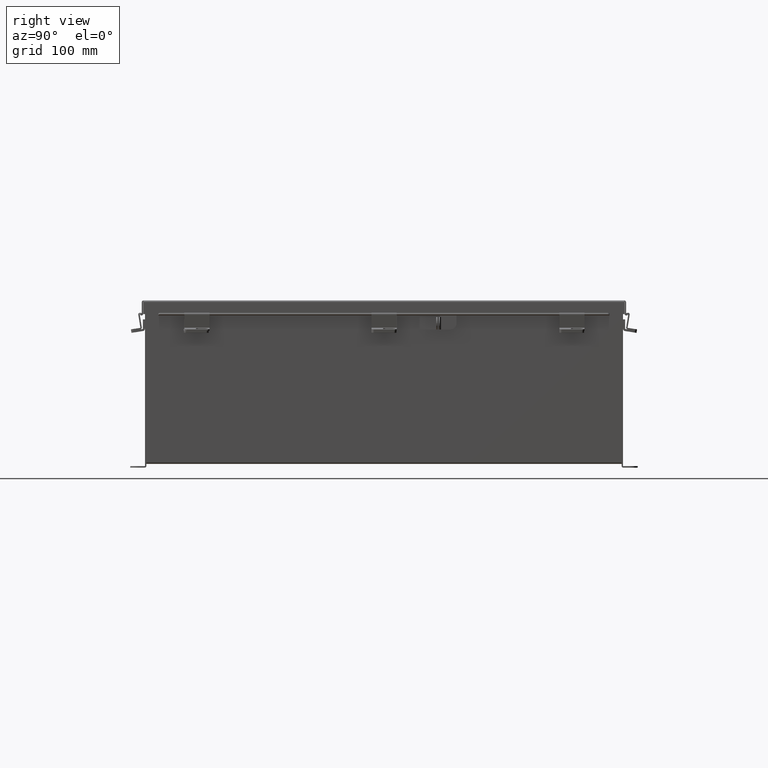
[diagram: clean part render]
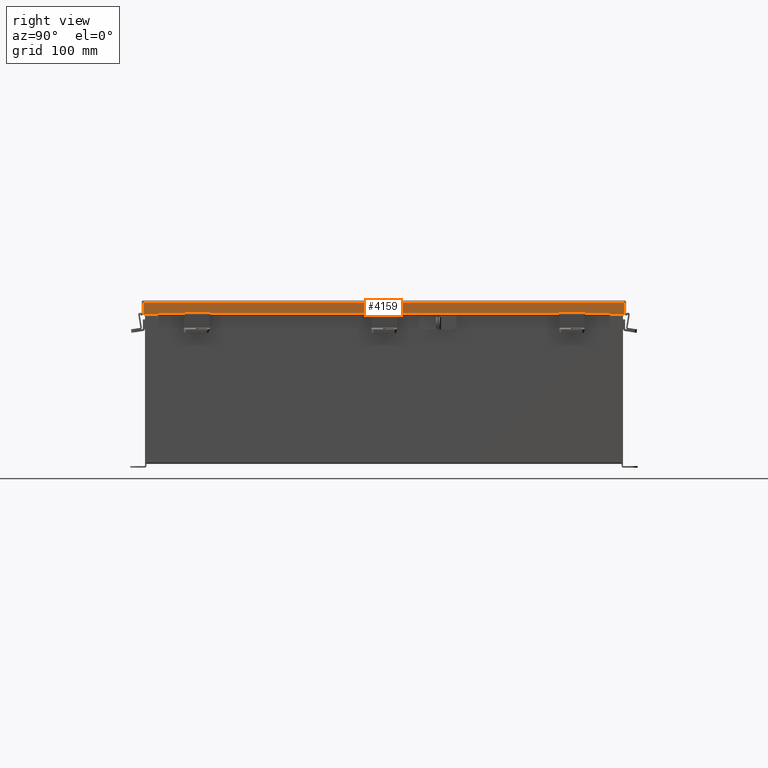
[diagram: same view with one face highlighted and labeled with its STEP entity id]
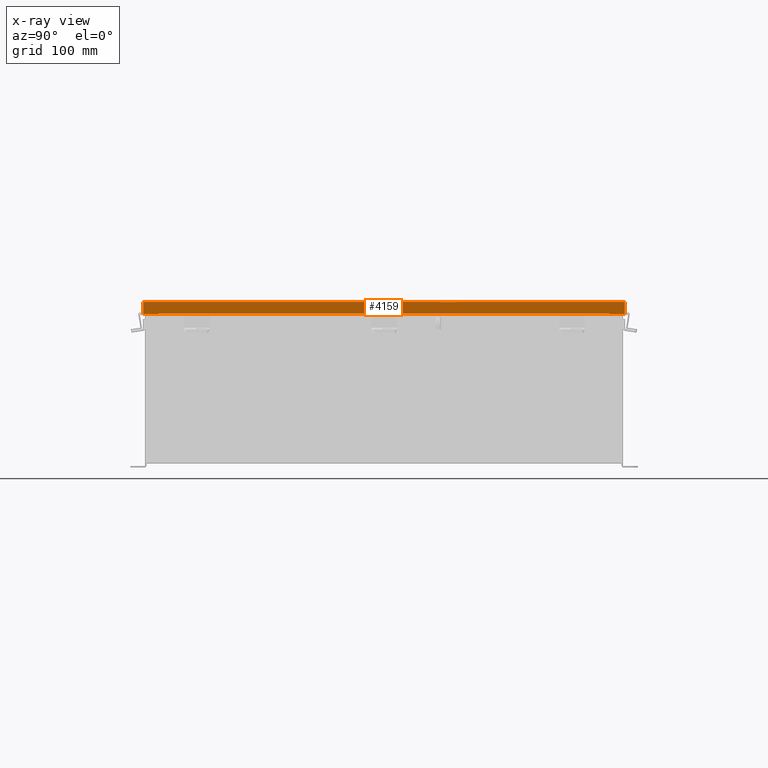
[diagram: x-ray of the same camera — body ghosted, the highlighted face saturated]
A machine part, right view. The second image highlights one B-rep face of the part: STEP entity #4159.
The next image is the same camera in x-ray: the body ghosted, the highlighted face saturated — about 0% of this face is hidden behind the body in this view.
In plain terms, the highlighted planar face has unit normal (-1, 0, -0).
Its self-contained STEP definition (entity closure, byte-faithful):
#238 = CARTESIAN_POINT ( 'NONE',  ( -12.15625000000003400, -11.32447893218813600, 0.6123000000000005100 ) ) ;
#433 = VECTOR ( 'NONE', #2533, 39.37007874015748100 ) ;
#536 = EDGE_CURVE ( 'NONE', #10867, #24933, #10958, .T. ) ;
#720 = VECTOR ( 'NONE', #22488, 39.37007874015748100 ) ;
#765 = LINE ( 'NONE', #12015, #14919 ) ;
#1323 = CARTESIAN_POINT ( 'NONE',  ( -12.15625000000003400, 11.32447893218813200, 0.6123000000000015100 ) ) ;
#1943 = ORIENTED_EDGE ( 'NONE', *, *, #3652, .F. ) ;
#2207 = LINE ( 'NONE', #18048, #16940 ) ;
#2533 = DIRECTION ( 'NONE',  ( 3.166671605124525800E-030, 1.000000000000000000, 1.853823127269377700E-029 ) ) ;
#2723 = ORIENTED_EDGE ( 'NONE', *, *, #6420, .F. ) ;
#2733 = DIRECTION ( 'NONE',  ( -3.166671605124527300E-030, -1.000000000000000000, -1.853823127269378000E-029 ) ) ;
#2819 = LINE ( 'NONE', #13302, #17560 ) ;
#3129 = ORIENTED_EDGE ( 'NONE', *, *, #4023, .F. ) ;
#3297 = EDGE_CURVE ( 'NONE', #10867, #24634, #10157, .T. ) ;
#3652 = EDGE_CURVE ( 'NONE', #9487, #9513, #7433, .T. ) ;
#4023 = EDGE_CURVE ( 'NONE', #24933, #11311, #765, .T. ) ;
#4050 = CARTESIAN_POINT ( 'NONE',  ( -12.15625000000003400, 11.32447893218813400, 0.5967115427318793200 ) ) ;
#4159 = ADVANCED_FACE ( 'NONE', ( #23358 ), #6515, .F. ) ;
#4670 = DIRECTION ( 'NONE',  ( 3.569293475308537100E-015, -1.846427556282924000E-029, -1.000000000000000000 ) ) ;
#4767 = EDGE_CURVE ( 'NONE', #24634, #17372, #16385, .T. ) ;
#4959 = EDGE_CURVE ( 'NONE', #19998, #17372, #21816, .T. ) ;
#4999 = CARTESIAN_POINT ( 'NONE',  ( -12.15625000000003400, -11.32447893218812100, 0.5967115427318782100 ) ) ;
#5126 = EDGE_CURVE ( 'NONE', #9487, #11311, #2819, .T. ) ;
#6420 = EDGE_CURVE ( 'NONE', #9513, #19998, #2207, .T. ) ;
#6515 = PLANE ( 'NONE',  #17334 ) ;
#6880 = ORIENTED_EDGE ( 'NONE', *, *, #4767, .T. ) ;
#7433 = LINE ( 'NONE', #1323, #17039 ) ;
#8950 = CARTESIAN_POINT ( 'NONE',  ( -12.15625000000003000, -11.32447893218812100, 0.5967115427318782100 ) ) ;
#9379 = CARTESIAN_POINT ( 'NONE',  ( -12.15625000000003000, 12.15624999999999800, 0.01300000000000010700 ) ) ;
#9487 = VERTEX_POINT ( 'NONE', #17451 ) ;
#9507 = CARTESIAN_POINT ( 'NONE',  ( -12.15625000000003400, 12.07447893218813200, 0.6123000000000005100 ) ) ;
#9513 = VERTEX_POINT ( 'NONE', #4050 ) ;
#9593 = ORIENTED_EDGE ( 'NONE', *, *, #3297, .T. ) ;
#10157 = LINE ( 'NONE', #12434, #19775 ) ;
#10867 = VERTEX_POINT ( 'NONE', #17866 ) ;
#10958 = LINE ( 'NONE', #9379, #19958 ) ;
#11311 = VERTEX_POINT ( 'NONE', #9507 ) ;
#12015 = CARTESIAN_POINT ( 'NONE',  ( -12.15625000000003000, 12.07447893218813200, 0.0000000000000000000 ) ) ;
#12434 = CARTESIAN_POINT ( 'NONE',  ( -12.15625000000003000, -12.07447893218813600, -4.370956789862821100E-014 ) ) ;
#13302 = CARTESIAN_POINT ( 'NONE',  ( -12.15625000000003200, -4.268512490100411300E-018, 0.6122999999999994000 ) ) ;
#13935 = DIRECTION ( 'NONE',  ( -3.569293475308537100E-015, 1.846427556282924300E-029, 1.000000000000000000 ) ) ;
#14285 = EDGE_LOOP ( 'NONE', ( #1943, #16060, #3129, #16556, #9593, #6880, #23294, #2723 ) ) ;
#14355 = DIRECTION ( 'NONE',  ( -3.569293475308537100E-015, 1.846427556282924300E-029, 1.000000000000000000 ) ) ;
#14785 = DIRECTION ( 'NONE',  ( 4.205955132072044700E-013, 1.401985044024007700E-013, -1.000000000000000000 ) ) ;
#14919 = VECTOR ( 'NONE', #13935, 39.37007874015748100 ) ;
#15908 = CARTESIAN_POINT ( 'NONE',  ( -12.15625000000003200, -4.268512490100411300E-018, 0.6122999999999994000 ) ) ;
#16060 = ORIENTED_EDGE ( 'NONE', *, *, #5126, .T. ) ;
#16189 = DIRECTION ( 'NONE',  ( 1.000000000000000000, 3.392644796219358600E-030, 3.569293475308537100E-015 ) ) ;
#16385 = LINE ( 'NONE', #15908, #433 ) ;
#16556 = ORIENTED_EDGE ( 'NONE', *, *, #536, .F. ) ;
#16561 = CARTESIAN_POINT ( 'NONE',  ( -12.15625000000003400, -12.07447893218813600, 0.6123000000000005100 ) ) ;
#16940 = VECTOR ( 'NONE', #2733, 39.37007874015748100 ) ;
#17039 = VECTOR ( 'NONE', #14785, 39.37007874015748100 ) ;
#17152 = DIRECTION ( 'NONE',  ( 3.166671605124525800E-030, 1.000000000000000000, 1.853823127269377700E-029 ) ) ;
#17334 = AXIS2_PLACEMENT_3D ( 'NONE', #23853, #16189, #4670 ) ;
#17372 = VERTEX_POINT ( 'NONE', #238 ) ;
#17451 = CARTESIAN_POINT ( 'NONE',  ( -12.15625000000003400, 11.32447893218813200, 0.6123000000000015100 ) ) ;
#17560 = VECTOR ( 'NONE', #17152, 39.37007874015748100 ) ;
#17866 = CARTESIAN_POINT ( 'NONE',  ( -12.15625000000003000, -12.07447893218813600, 0.01300000000000010700 ) ) ;
#18048 = CARTESIAN_POINT ( 'NONE',  ( -12.15625000000003000, 11.32447893218812900, 0.5967115427318793200 ) ) ;
#19775 = VECTOR ( 'NONE', #14355, 39.37007874015748100 ) ;
#19958 = VECTOR ( 'NONE', #24742, 39.37007874015748100 ) ;
#19998 = VERTEX_POINT ( 'NONE', #4999 ) ;
#21816 = LINE ( 'NONE', #8950, #720 ) ;
#22488 = DIRECTION ( 'NONE',  ( -2.803970088047903700E-013, -9.813895308167636000E-013, 1.000000000000000000 ) ) ;
#23294 = ORIENTED_EDGE ( 'NONE', *, *, #4959, .F. ) ;
#23358 = FACE_OUTER_BOUND ( 'NONE', #14285, .T. ) ;
#23383 = CARTESIAN_POINT ( 'NONE',  ( -12.15625000000003000, 12.07447893218813200, 0.01300000000000010700 ) ) ;
#23853 = CARTESIAN_POINT ( 'NONE',  ( -12.15625000000003200, 0.0000000000000000000, -4.370956789862821100E-014 ) ) ;
#24634 = VERTEX_POINT ( 'NONE', #16561 ) ;
#24742 = DIRECTION ( 'NONE',  ( 3.166671605124525800E-030, 1.000000000000000000, 1.853823127269377700E-029 ) ) ;
#24933 = VERTEX_POINT ( 'NONE', #23383 ) ;